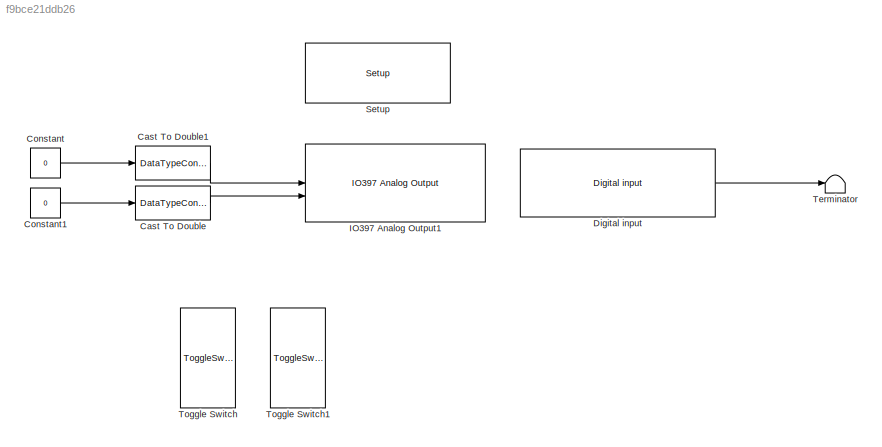
MODEL slx_f9bce21ddb26
KIND model
CONFIG AbsTol = auto
CONFIG EnableMultiTasking = off
CONFIG FixedStep = auto
CONFIG MaxStep = auto
CONFIG MinStep = auto
CONFIG RelTol = 1e-3
CONFIG SampleTimeConstraint = Unconstrained
CONFIG SolverName = FixedStepAuto
CONFIG StartTime = 0.0
CONFIG StopTime = inf
BLOCK [DataTypeConversion] Cast To Double
  OutDataTypeStr = double
  RndMeth = Floor
  SaturateOnIntegerOverflow = off
BLOCK [DataTypeConversion] Cast To Double1
  OutDataTypeStr = double
  RndMeth = Floor
  SaturateOnIntegerOverflow = off
BLOCK [Constant] Constant
  SampleTime = -1
  Value = 0
BLOCK [Constant] Constant1
  SampleTime = -1
  Value = 0
BLOCK [Reference] Digital input  REF=speedgoatlib_fpga_dio/Digital input
  SourceBlock = speedgoatlib_fpga_dio/Digital input
  SourceProductName = Simulink Real-Time: Speedgoat I/O Blockset
  SourceType = di_fpga_a2
BLOCK [Reference] IO397 Analog Output1  REF=speedgoatlib_fpga_analog_io/IO397 Analog Output
  SourceBlock = speedgoatlib_fpga_analog_io/IO397 Analog Output
  SourceProductName = Simulink Real-Time: Speedgoat I/O Blockset
  SourceType = da_IO397
BLOCK [Reference] Setup  REF=speedgoatlib_fpga/Setup/Setup
  SourceBlock = speedgoatlib_fpga/Setup/Setup
  SourceProductName = Simulink Real-Time: Speedgoat I/O Blockset
  SourceType = setup_fpga_3
BLOCK [Terminator] Terminator
BLOCK [ToggleSwitchBlock] Toggle Switch
BLOCK [ToggleSwitchBlock] Toggle Switch1
LINE Cast To Double1:1 -> IO397 Analog Output1:1
LINE Cast To Double:1 -> IO397 Analog Output1:2
LINE Constant1:1 -> Cast To Double:1
LINE Constant:1 -> Cast To Double1:1
LINE Digital input:1 -> Terminator:1
